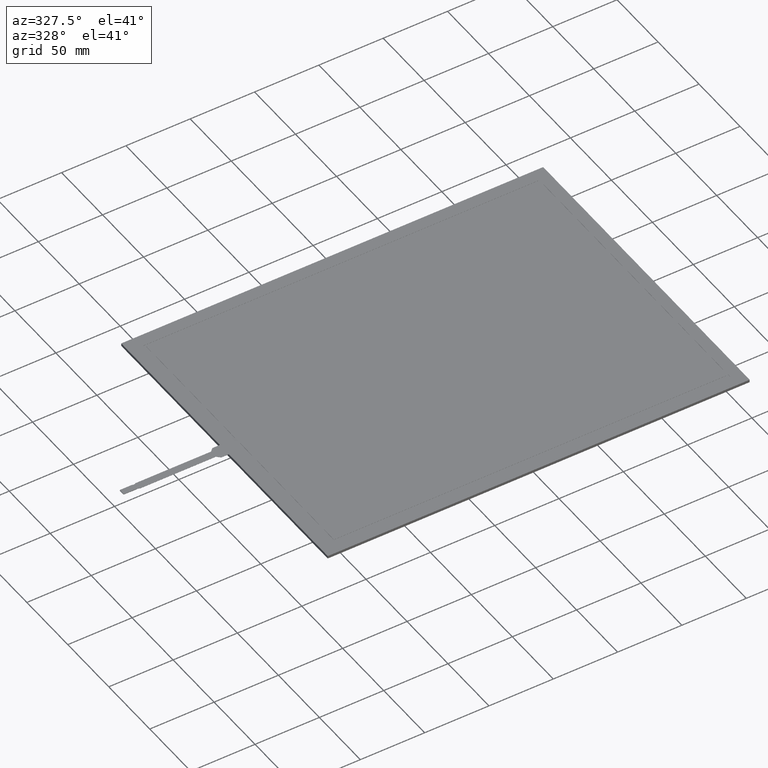
[diagram: clean part render]
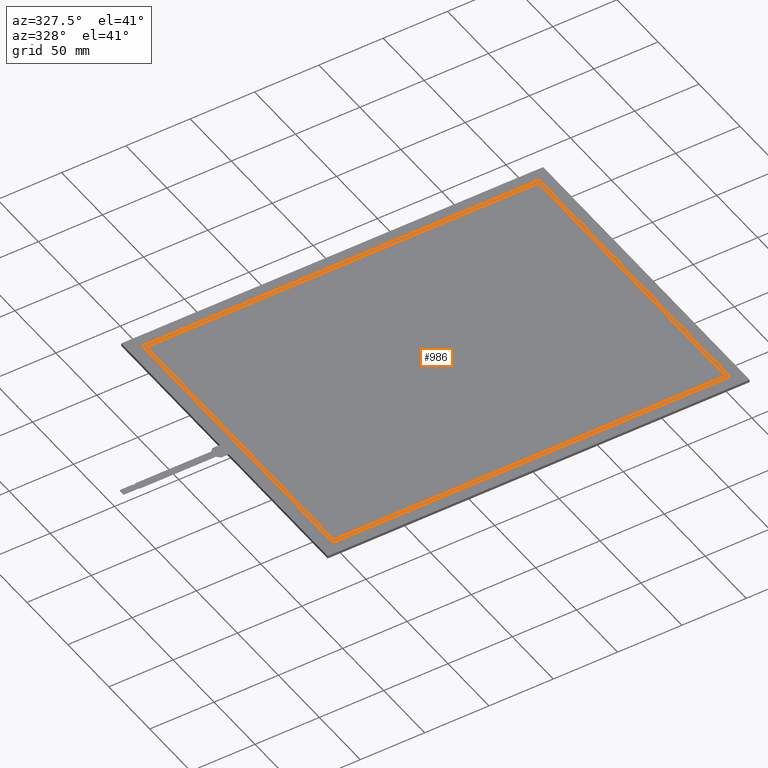
[diagram: same view with one face highlighted and labeled with its STEP entity id]
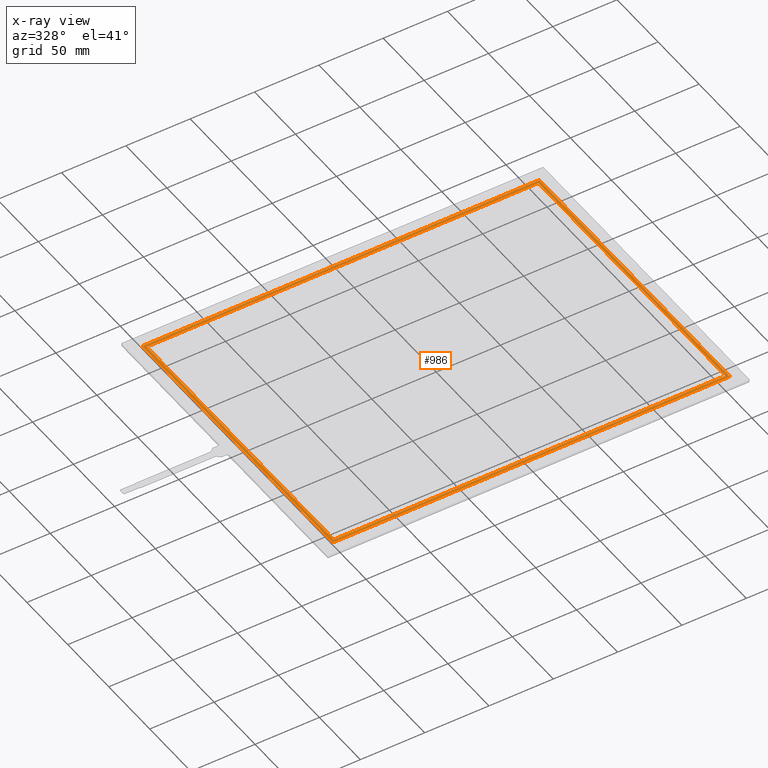
[diagram: x-ray of the same camera — body ghosted, the highlighted face saturated]
A machine part, auxiliary view. The second image highlights one B-rep face of the part: STEP entity #986.
The next image is the same camera in x-ray: the body ghosted, the highlighted face saturated — about 0% of this face is hidden behind the body in this view.
In plain terms, the highlighted planar face has unit normal (0, 0, -1).
Its self-contained STEP definition (entity closure, byte-faithful):
#66=FACE_BOUND('',#129,.T.);
#76=FACE_OUTER_BOUND('',#128,.T.);
#128=EDGE_LOOP('',(#688,#689,#690,#691));
#129=EDGE_LOOP('',(#692,#693,#694,#695));
#176=LINE('',#1379,#302);
#180=LINE('',#1386,#306);
#183=LINE('',#1392,#309);
#185=LINE('',#1395,#311);
#188=LINE('',#1403,#314);
#192=LINE('',#1410,#318);
#195=LINE('',#1416,#321);
#197=LINE('',#1419,#323);
#302=VECTOR('',#1121,10.);
#306=VECTOR('',#1127,10.);
#309=VECTOR('',#1132,10.);
#311=VECTOR('',#1136,10.);
#314=VECTOR('',#1141,10.);
#318=VECTOR('',#1147,10.);
#321=VECTOR('',#1152,10.);
#323=VECTOR('',#1156,10.);
#428=VERTEX_POINT('',#1376);
#429=VERTEX_POINT('',#1378);
#431=VERTEX_POINT('',#1384);
#433=VERTEX_POINT('',#1390);
#436=VERTEX_POINT('',#1400);
#437=VERTEX_POINT('',#1402);
#439=VERTEX_POINT('',#1408);
#441=VERTEX_POINT('',#1414);
#520=EDGE_CURVE('',#428,#429,#176,.T.);
#524=EDGE_CURVE('',#431,#428,#180,.T.);
#527=EDGE_CURVE('',#433,#431,#183,.T.);
#529=EDGE_CURVE('',#429,#433,#185,.T.);
#532=EDGE_CURVE('',#436,#437,#188,.T.);
#536=EDGE_CURVE('',#439,#436,#192,.T.);
#539=EDGE_CURVE('',#441,#439,#195,.T.);
#541=EDGE_CURVE('',#437,#441,#197,.T.);
#688=ORIENTED_EDGE('',*,*,#541,.F.);
#689=ORIENTED_EDGE('',*,*,#532,.F.);
#690=ORIENTED_EDGE('',*,*,#536,.F.);
#691=ORIENTED_EDGE('',*,*,#539,.F.);
#692=ORIENTED_EDGE('',*,*,#529,.F.);
#693=ORIENTED_EDGE('',*,*,#520,.F.);
#694=ORIENTED_EDGE('',*,*,#524,.F.);
#695=ORIENTED_EDGE('',*,*,#527,.F.);
#940=PLANE('',#1059);
#986=ADVANCED_FACE('',(#76,#66),#940,.F.);
#1059=AXIS2_PLACEMENT_3D('',#1420,#1157,#1158);
#1121=DIRECTION('',(1.,0.,0.));
#1127=DIRECTION('',(0.,-1.,0.));
#1132=DIRECTION('',(-1.,0.,0.));
#1136=DIRECTION('',(0.,1.,0.));
#1141=DIRECTION('',(-2.29108792699946E-16,1.,0.));
#1147=DIRECTION('',(-1.,-1.72668584330776E-16,0.));
#1152=DIRECTION('',(7.63695975666488E-17,-1.,0.));
#1156=DIRECTION('',(1.,0.,0.));
#1157=DIRECTION('center_axis',(0.,0.,-1.));
#1158=DIRECTION('ref_axis',(-1.,0.,0.));
#1376=CARTESIAN_POINT('',(-152.315,-114.3,-0.1));
#1378=CARTESIAN_POINT('',(152.315,-114.3,-0.1));
#1379=CARTESIAN_POINT('',(152.315,-114.3,-0.1));
#1384=CARTESIAN_POINT('',(-152.315,114.3,-0.1));
#1386=CARTESIAN_POINT('',(-152.315,-114.3,-0.1));
#1390=CARTESIAN_POINT('',(152.315,114.3,-0.1));
#1392=CARTESIAN_POINT('',(-152.315,114.3,-0.1));
#1395=CARTESIAN_POINT('',(152.315,114.3,-0.1));
#1400=CARTESIAN_POINT('',(-154.315,-116.3,-0.1));
#1402=CARTESIAN_POINT('',(-154.315,116.3,-0.1));
#1403=CARTESIAN_POINT('',(-154.315,116.3,-0.1));
#1408=CARTESIAN_POINT('',(154.315,-116.3,-0.1));
#1410=CARTESIAN_POINT('',(-154.315,-116.3,-0.1));
#1414=CARTESIAN_POINT('',(154.315,116.3,-0.1));
#1416=CARTESIAN_POINT('',(154.315,-116.3,-0.1));
#1419=CARTESIAN_POINT('',(154.315,116.3,-0.1));
#1420=CARTESIAN_POINT('Origin',(-3.5527136788005E-14,1.77635683940025E-14,
-0.1));